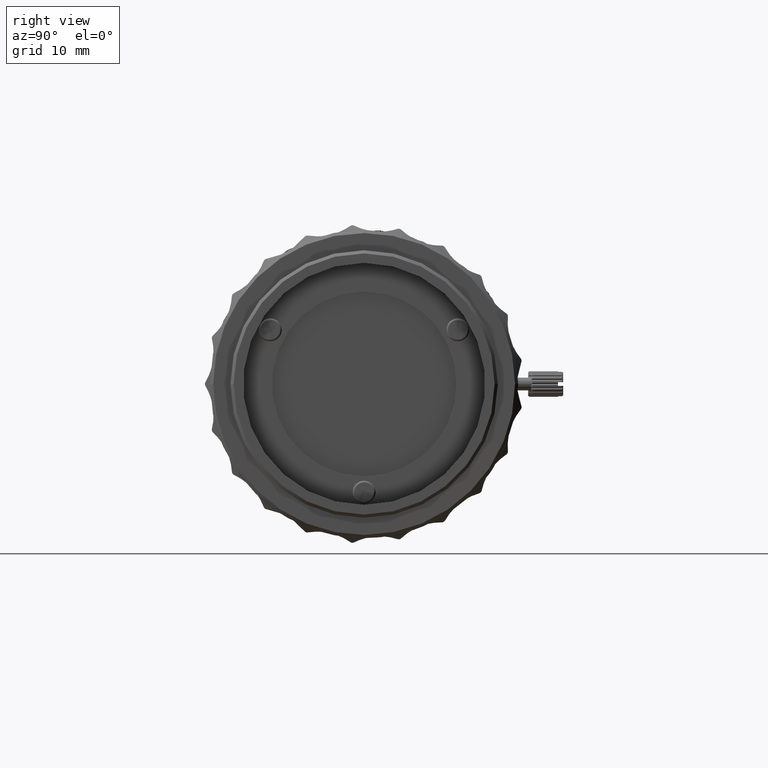
[diagram: clean part render]
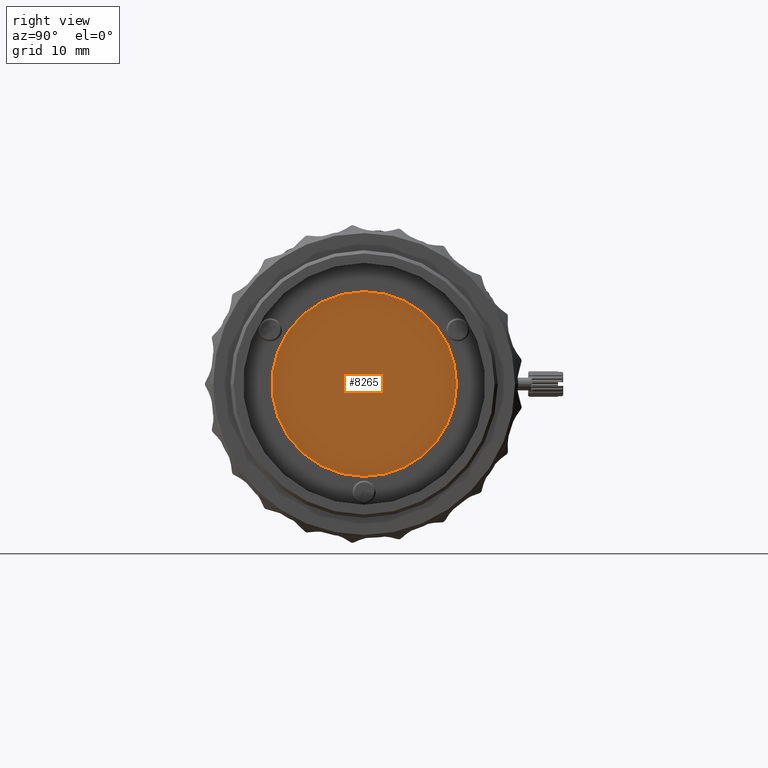
[diagram: same view with one face highlighted and labeled with its STEP entity id]
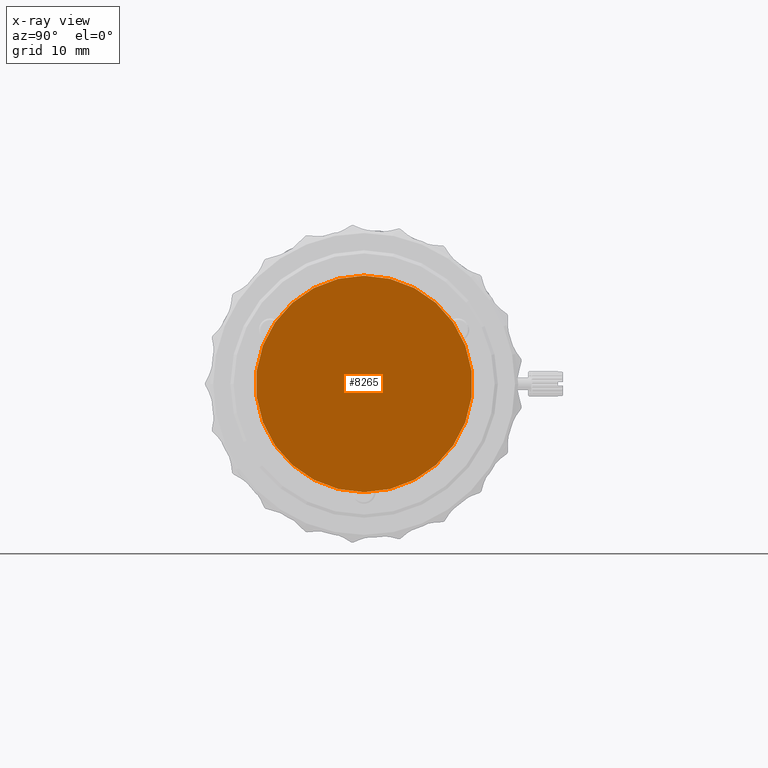
[diagram: x-ray of the same camera — body ghosted, the highlighted face saturated]
A machine part, right view. The second image highlights one B-rep face of the part: STEP entity #8265.
The next image is the same camera in x-ray: the body ghosted, the highlighted face saturated — about 0% of this face is hidden behind the body in this view.
In plain terms, the highlighted planar face has unit normal (1, 0, 0).
Its self-contained STEP definition (entity closure, byte-faithful):
#554 = DIRECTION ( 'NONE',  ( 0.000000000000000000, 1.000000000000000000, -6.123233995736769734E-17 ) ) ;
#1012 = CARTESIAN_POINT ( 'NONE',  ( 69.17000000000000171, 0.000000000000000000, 0.000000000000000000 ) ) ;
#1625 = CARTESIAN_POINT ( 'NONE',  ( 69.17000000000000171, 0.000000000000000000, 0.000000000000000000 ) ) ;
#2334 = DIRECTION ( 'NONE',  ( 1.000000000000000000, 0.000000000000000000, 0.000000000000000000 ) ) ;
#3818 = VERTEX_POINT ( 'NONE', #22349 ) ;
#6264 = ORIENTED_EDGE ( 'NONE', *, *, #37379, .T. ) ;
#7728 = AXIS2_PLACEMENT_3D ( 'NONE', #35277, #14498, #53449 ) ;
#8265 = ADVANCED_FACE ( 'NONE', ( #20700 ), #34393, .T. ) ;
#8870 = CIRCLE ( 'NONE', #65394, 17.00000000000000000 ) ;
#14498 = DIRECTION ( 'NONE',  ( 1.000000000000000000, 0.000000000000000000, 0.000000000000000000 ) ) ;
#20700 = FACE_OUTER_BOUND ( 'NONE', #87058, .T. ) ;
#22349 = CARTESIAN_POINT ( 'NONE',  ( 69.17000000000000171, 0.000000000000000000, 17.00000000000000000 ) ) ;
#31948 = EDGE_CURVE ( 'NONE', #3818, #74261, #85165, .T. ) ;
#34393 = PLANE ( 'NONE',  #7728 ) ;
#35277 = CARTESIAN_POINT ( 'NONE',  ( 69.17000000000000171, 0.000000000000000000, 0.000000000000000000 ) ) ;
#37379 = EDGE_CURVE ( 'NONE', #74261, #3818, #8870, .T. ) ;
#49031 = DIRECTION ( 'NONE',  ( 0.000000000000000000, 1.000000000000000000, -6.123233995736769734E-17 ) ) ;
#53449 = DIRECTION ( 'NONE',  ( 0.000000000000000000, 1.000000000000000000, 0.000000000000000000 ) ) ;
#65394 = AXIS2_PLACEMENT_3D ( 'NONE', #1625, #82618, #49031 ) ;
#66810 = AXIS2_PLACEMENT_3D ( 'NONE', #1012, #2334, #554 ) ;
#74261 = VERTEX_POINT ( 'NONE', #85994 ) ;
#76439 = ORIENTED_EDGE ( 'NONE', *, *, #31948, .T. ) ;
#82618 = DIRECTION ( 'NONE',  ( 1.000000000000000000, 0.000000000000000000, 0.000000000000000000 ) ) ;
#85165 = CIRCLE ( 'NONE', #66810, 17.00000000000000000 ) ;
#85994 = CARTESIAN_POINT ( 'NONE',  ( 69.17000000000000171, 2.081899558550499885E-15, -17.00000000000000000 ) ) ;
#87058 = EDGE_LOOP ( 'NONE', ( #76439, #6264 ) ) ;